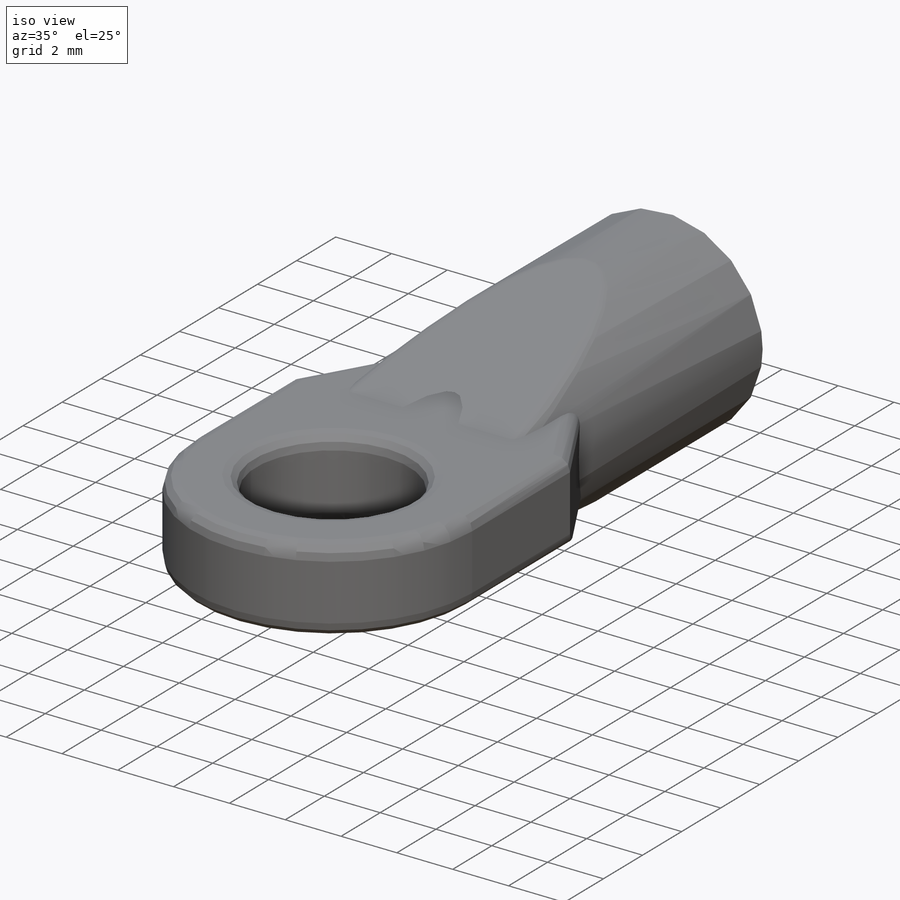
[diagram: iso view]
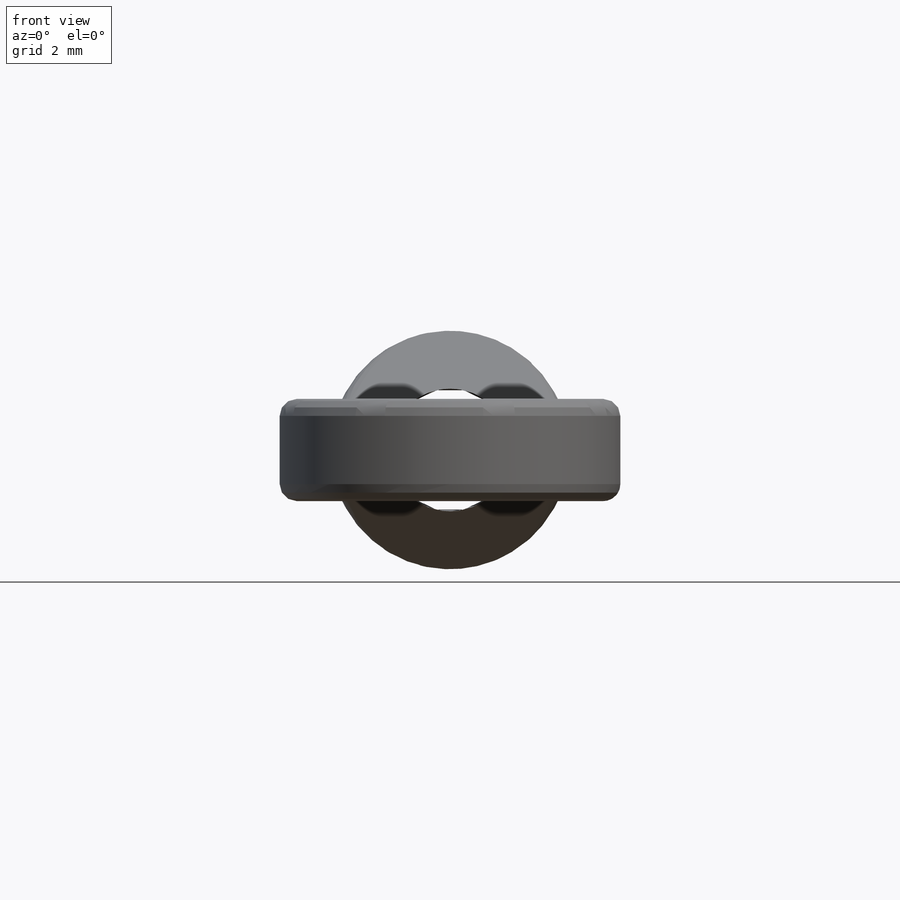
[diagram: front view]
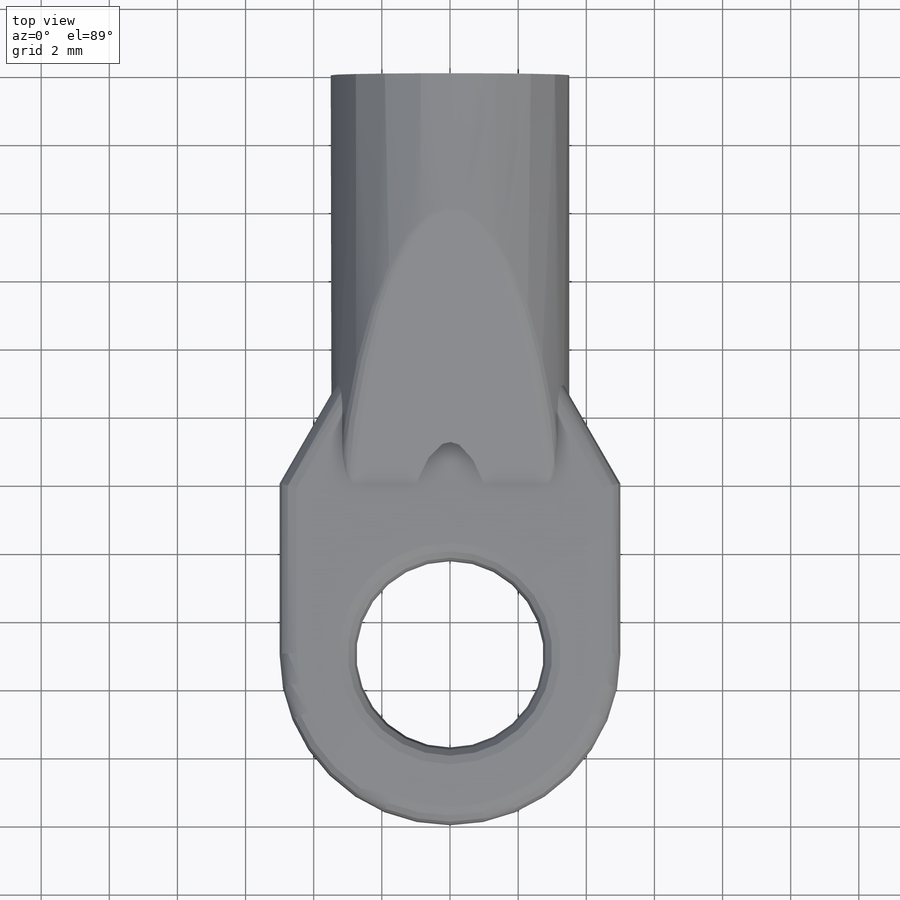
[diagram: top view]
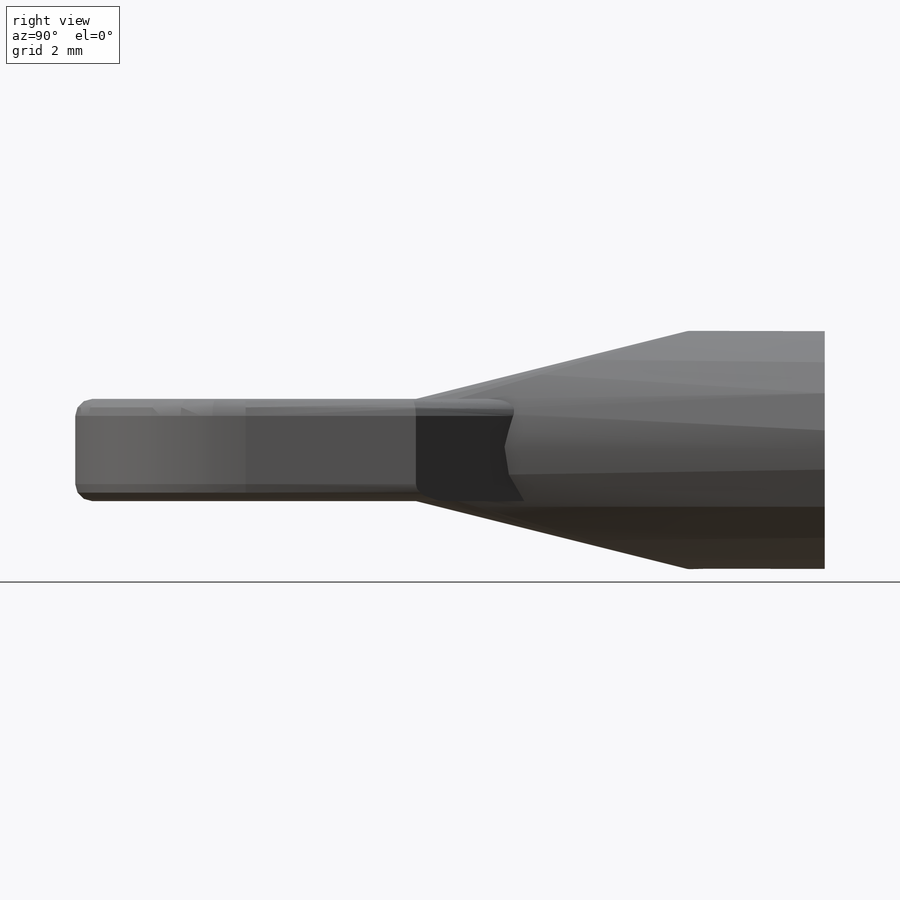
[diagram: right view]
SOLIDWORKS PART (.sldprt)
format: sldprt  version: not decoded by parser v0  size: 259,584 bytes
history: native  units: mm
features: sketch x5, extrude x3, cut_extrude x2, material x1, mirror x1, fillet x1 (+11 scaffold rows collapsed)
feature tree (24):
  scaffold x11  (default folders/planes/origin — collapsed)
  material  "Material <not specified>"
  sketch  "Sketch1"  dims[D1=7.0mm D2=3.6mm]
  extrude  "Boss-Extrude1"  Depth=12mm
  sketch  "Sketch2"  dims[D1=10.0mm D2=5.0mm]
  extrude  "Boss-Extrude2"  Depth=3mm
  sketch  "Sketch3"  dims[c1.D1=5.0mm c2.D1=60.0deg]
  extrude  "Boss-Extrude3"  Depth=3mm
  sketch  "Sketch5"  dims[D1=8.0mm]
  cut_extrude  "Cut-Extrude1"  Depth=10mm
  mirror  "Mirror1"
  sketch  "Sketch6"  dims[D1=5.5mm]
  cut_extrude  "Cut-Extrude2"  [1 undecoded]
  fillet  "Fillet1"  Radius=0.5mm
decode coverage: 10 of 12 modeling features carry decoded parameters
note: 1 parameter value undecoded
note: suppression state not decoded; provenance and decode notes live in map.json
